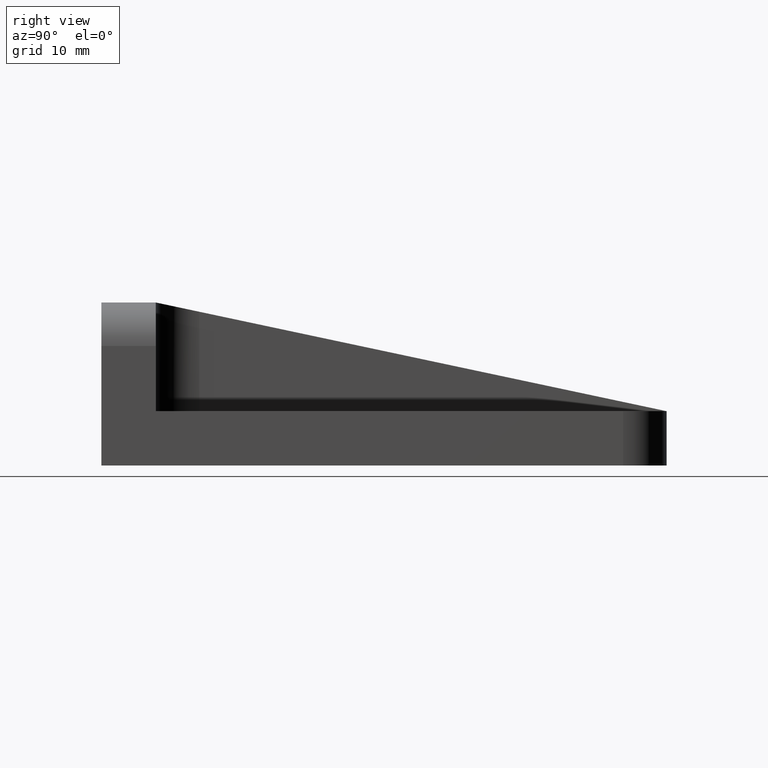
[diagram: clean part render]
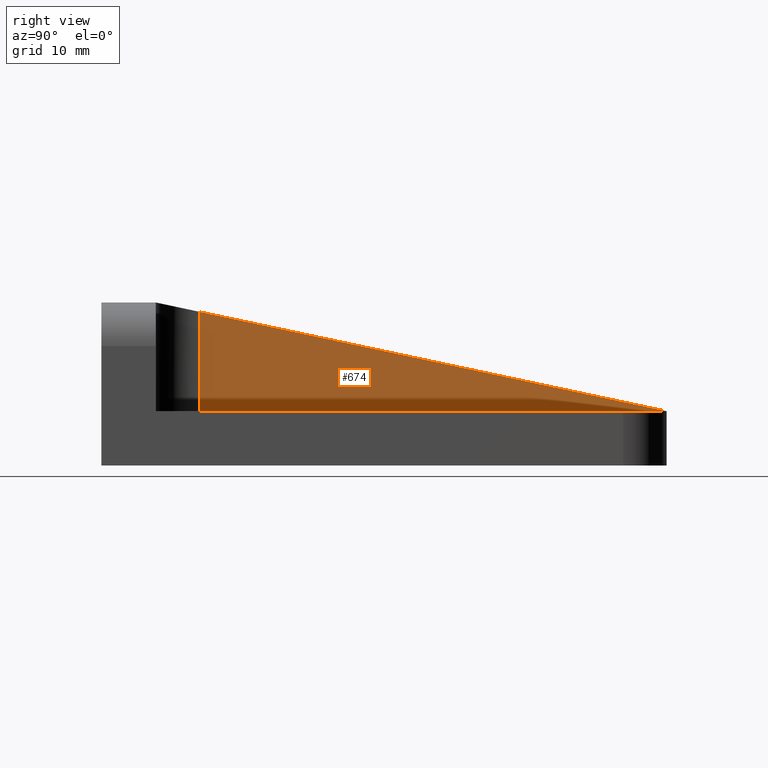
[diagram: same view with one face highlighted and labeled with its STEP entity id]
A machine part, right view. The second image highlights one B-rep face of the part: STEP entity #674.
In plain terms, the highlighted planar face has unit normal (-1, -0, 0).
Its self-contained STEP definition (entity closure, byte-faithful):
#18 = LINE ( 'NONE', #111, #31 ) ;
#31 = VECTOR ( 'NONE', #852, 1000.000000000000000 ) ;
#43 = CARTESIAN_POINT ( 'NONE',  ( 2.500000000000006661, 8.999999999999998224, 4.999999999999997335 ) ) ;
#105 = CARTESIAN_POINT ( 'NONE',  ( 2.500000000000006661, 9.000000000000001776, 14.14893617021276562 ) ) ;
#111 = CARTESIAN_POINT ( 'NONE',  ( 2.500000000000006661, 8.999999999999998224, 4.999999999999997335 ) ) ;
#140 = DIRECTION ( 'NONE',  ( -1.805046081917125449E-17, 0.9781059289848355043, -0.2081076444648586043 ) ) ;
#182 = CARTESIAN_POINT ( 'NONE',  ( 2.500000000000006661, 4.999999999999999112, -50.15226814412284995 ) ) ;
#193 = ORIENTED_EDGE ( 'NONE', *, *, #599, .T. ) ;
#205 = ORIENTED_EDGE ( 'NONE', *, *, #1132, .T. ) ;
#298 = AXIS2_PLACEMENT_3D ( 'NONE', #182, #748, #956 ) ;
#351 = VERTEX_POINT ( 'NONE', #105 ) ;
#401 = LINE ( 'NONE', #1172, #577 ) ;
#463 = PLANE ( 'NONE',  #298 ) ;
#488 = ORIENTED_EDGE ( 'NONE', *, *, #775, .F. ) ;
#568 = VERTEX_POINT ( 'NONE', #43 ) ;
#577 = VECTOR ( 'NONE', #140, 1000.000000000000000 ) ;
#599 = EDGE_CURVE ( 'NONE', #568, #757, #661, .T. ) ;
#661 = LINE ( 'NONE', #1068, #1198 ) ;
#674 = ADVANCED_FACE ( 'NONE', ( #1048 ), #463, .F. ) ;
#748 = DIRECTION ( 'NONE',  ( -1.000000000000000000, -1.845450506358305387E-17, 0.0000000000000000000 ) ) ;
#757 = VERTEX_POINT ( 'NONE', #942 ) ;
#775 = EDGE_CURVE ( 'NONE', #351, #757, #401, .T. ) ;
#848 = EDGE_LOOP ( 'NONE', ( #488, #205, #193 ) ) ;
#852 = DIRECTION ( 'NONE',  ( -0.0000000000000000000, -0.0000000000000000000, -1.000000000000000000 ) ) ;
#942 = CARTESIAN_POINT ( 'NONE',  ( 2.500000000000005773, 52.00000000000000000, 4.999999999999997335 ) ) ;
#956 = DIRECTION ( 'NONE',  ( 1.845450506358305387E-17, -1.000000000000000000, 0.0000000000000000000 ) ) ;
#991 = DIRECTION ( 'NONE',  ( -1.845450506358305387E-17, 1.000000000000000000, 0.0000000000000000000 ) ) ;
#1048 = FACE_OUTER_BOUND ( 'NONE', #848, .T. ) ;
#1068 = CARTESIAN_POINT ( 'NONE',  ( 2.500000000000006661, 4.999999999999999112, 4.999999999999997335 ) ) ;
#1132 = EDGE_CURVE ( 'NONE', #351, #568, #18, .T. ) ;
#1172 = CARTESIAN_POINT ( 'NONE',  ( 2.500000000000005773, 52.00000000000000000, 5.000000000000000000 ) ) ;
#1198 = VECTOR ( 'NONE', #991, 1000.000000000000000 ) ;